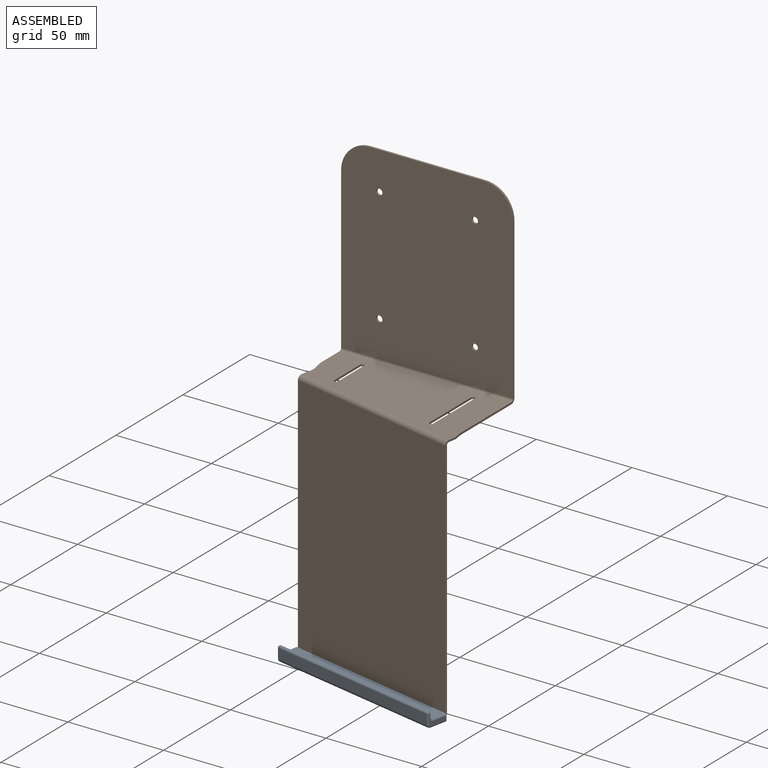
[diagram: assembled view]
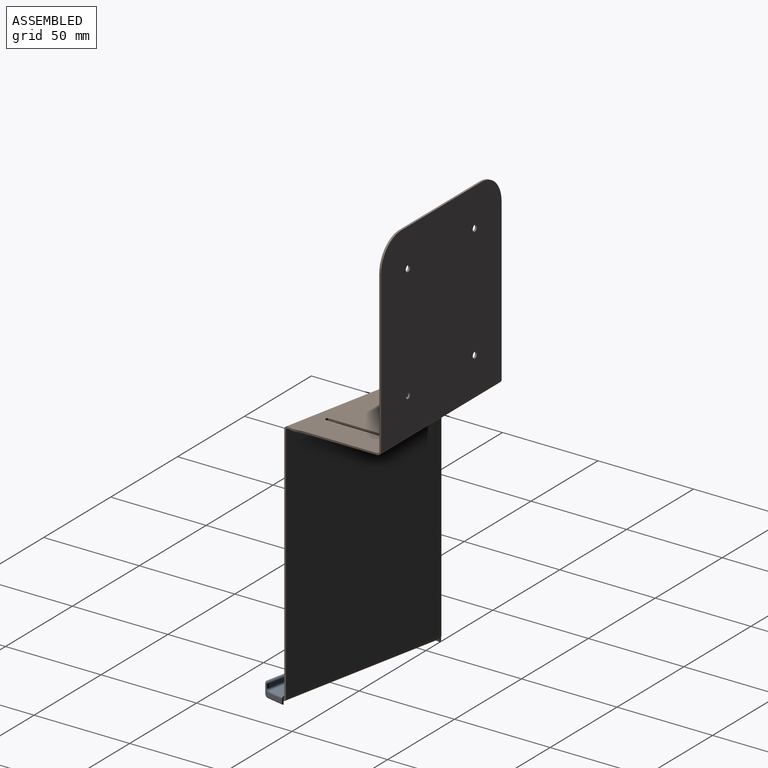
[diagram: assembled view, second angle]
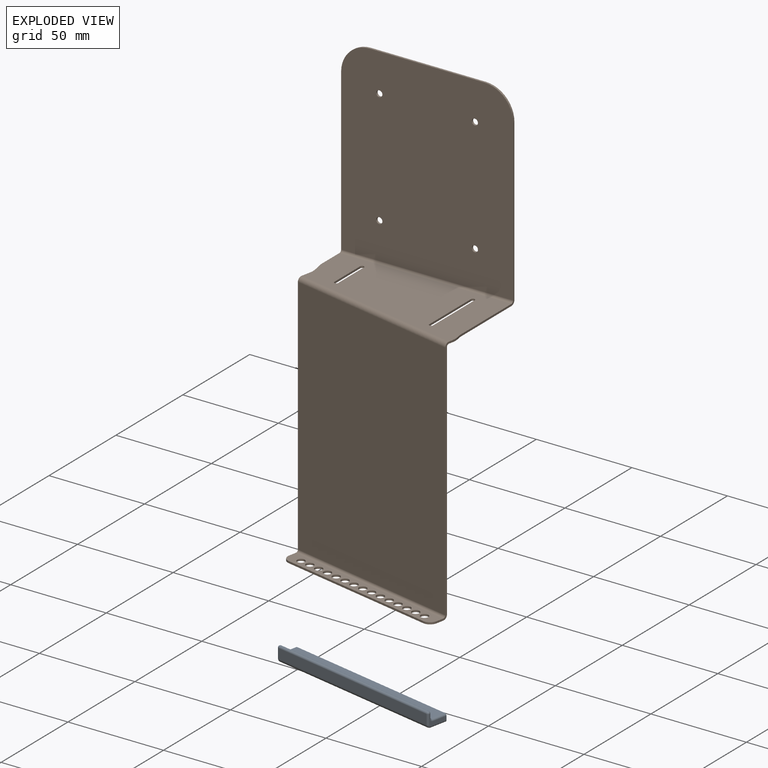
[diagram: exploded view]
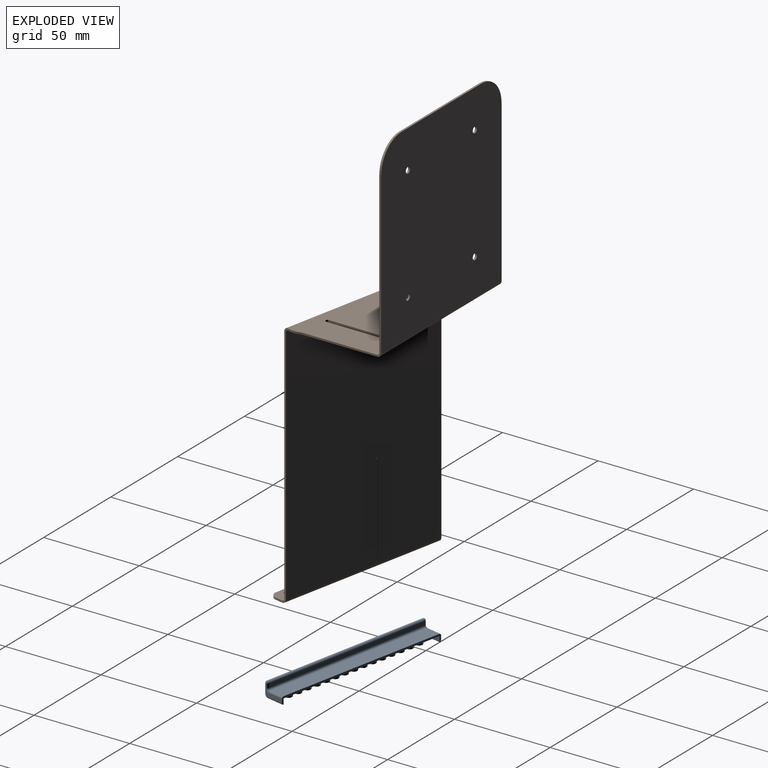
[diagram: exploded view, second angle]
ASSEMBLY  parts=2 mates=2
PART A: 84 faces, bbox 94x11.2x8.2 mm
  f0: plane 2.72x2.72mm, normal (0,0,-1), area 2.5mm2, adj f7,f11,f61
  f1: plane 94x3.97mm, normal (0,1,0), area 53.1mm2, adj f2,f9,f10,f11,f16,f17,f22,f23
  f2: plane 92x8mm, normal (0,0,1), area 736mm2, adj f1,f3,f16,f22
  f3: cylinder r=1mm len=92mm, axis (1,0,0), area 144.5mm2, adj f2,f4,f15,f21
  f4: plane 92x2mm, normal (0,1,0), area 184mm2, adj f3,f5,f13,f20
  f5: cylinder r=1mm len=92mm, axis (1,0,0), area 289mm2, adj f4,f6,f14,f19
  f6: plane 92x5mm, normal (0,-1,0), area 460mm2, adj f5,f7,f13,f20
  f7: cylinder r=2mm len=92mm, axis (1,0,0), area 269.9mm2, adj f0,f6,f8,f12,f18,f62,f63,f64
  f8: plane 2.72x2.72mm, normal (0,0,-1), area 2.5mm2, adj f7,f17,f65
  f9: plane 10x4mm, normal (-1,0,0), area 20.6mm2, adj f1,f17,f18,f20,f21,f22
  f10: plane 10x4mm, normal (1,0,0), area 20.6mm2, adj f1,f11,f12,f13,f15,f16
  f11: cylinder r=1mm len=9mm, axis (0,1,0), area 12.7mm2, adj f0,f1,f10,f12,f59,f60
  f12: torus R=1mm, axis (1,0,0), area 4mm2, adj f7,f10,f11,f13
  f13: cylinder r=1mm len=5mm, axis (0,0,-1), area 11mm2, adj f4,f6,f10,f12,f14,f15
  f14: sphere r=1mm, area 3.1mm2, adj f5,f13
  f15: torus R=2mm, axis (1,0,0), area 3.4mm2, adj f3,f10,f13,f16
  f16: cylinder r=1mm len=8mm, axis (0,-1,0), area 12.6mm2, adj f1,f2,f10,f15
  f17: cylinder r=1mm len=9mm, axis (0,-1,0), area 12.7mm2, adj f1,f8,f9,f18,f66,f67
  f18: torus R=1mm, axis (1,0,0), area 4mm2, adj f7,f9,f17,f20
  f19: sphere r=1mm, area 3.1mm2, adj f5,f20
  f20: cylinder r=1mm len=5mm, axis (0,0,1), area 11mm2, adj f4,f6,f9,f18,f19,f21
  f21: torus R=2mm, axis (1,0,0), area 3.4mm2, adj f3,f9,f20,f22
  f22: cylinder r=1mm len=8mm, axis (0,1,0), area 12.6mm2, adj f1,f2,f9,f21
  f23: plane 5x3.27mm, normal (-1,0,0), area 11.6mm2, adj f1,f24,f43,f59,f83
  f24: cylinder r=4mm len=4mm, axis (0,0,-1), area 14.4mm2, adj f23,f25,f43,f60,f61,f62
  f25: plane 84x2.29mm, normal (0,1,0), area 192.3mm2, adj f24,f26,f43,f63
  f26: cylinder r=4mm len=4mm, axis (0,0,-1), area 14.4mm2, adj f25,f27,f43,f64,f65,f66
  f27: plane 5x3.27mm, normal (1,0,0), area 11.6mm2, adj f1,f26,f43,f67,f83
  f28: cylinder r=1.95mm len=3.9mm, axis (0,0,-1), area 28.2mm2, adj f43,f82
  f29: cylinder r=1.95mm len=3.9mm, axis (0,0,-1), area 28.2mm2, adj f43,f81
  f30: cylinder r=1.95mm len=3.9mm, axis (0,0,-1), area 28.2mm2, adj f43,f80
  f31: cylinder r=1.95mm len=3.9mm, axis (0,0,-1), area 28.2mm2, adj f43,f79
  f32: cylinder r=1.95mm len=3.9mm, axis (0,0,-1), area 28.2mm2, adj f43,f78
  f33: cylinder r=1.95mm len=3.9mm, axis (0,0,-1), area 28.2mm2, adj f43,f77
  f34: cylinder r=1.95mm len=3.9mm, axis (0,0,-1), area 28.2mm2, adj f43,f76
  f35: cylinder r=1.95mm len=3.9mm, axis (0,0,-1), area 28.2mm2, adj f43,f75
  f36: cylinder r=1.95mm len=3.9mm, axis (0,0,-1), area 28.2mm2, adj f43,f74
  f37: cylinder r=1.95mm len=3.9mm, axis (0,0,-1), area 28.2mm2, adj f43,f73
  f38: cylinder r=1.95mm len=3.9mm, axis (0,0,-1), area 28.2mm2, adj f43,f72
  f39: cylinder r=1.95mm len=3.9mm, axis (0,0,-1), area 28.2mm2, adj f43,f71
  f40: cylinder r=1.95mm len=3.9mm, axis (0,0,-1), area 28.2mm2, adj f43,f70
  f41: cylinder r=1.95mm len=3.9mm, axis (0,0,-1), area 28.2mm2, adj f43,f69
  f42: cylinder r=1.95mm len=3.9mm, axis (0,0,-1), area 28.2mm2, adj f43,f68
  f43: plane 92x8mm, normal (0,0,-1), area 549.9mm2, adj f23,f24,f25,f26,f27,f28,f29,f30
  f44: plane 3.5x3.5mm, normal (0,0,-1), area 9.6mm2, adj f69
  f45: plane 3.5x3.5mm, normal (0,0,-1), area 9.6mm2, adj f70
  f46: plane 3.5x3.5mm, normal (0,0,-1), area 9.6mm2, adj f71
  f47: plane 3.5x3.5mm, normal (0,0,-1), area 9.6mm2, adj f72
  f48: plane 3.5x3.5mm, normal (0,0,-1), area 9.6mm2, adj f73
  f49: plane 3.5x3.5mm, normal (0,0,-1), area 9.6mm2, adj f74
  f50: plane 3.5x3.5mm, normal (0,0,-1), area 9.6mm2, adj f75
  f51: plane 3.5x3.5mm, normal (0,0,-1), area 9.6mm2, adj f76
  f52: plane 3.5x3.5mm, normal (0,0,-1), area 9.6mm2, adj f77
  f53: plane 3.5x3.5mm, normal (0,0,-1), area 9.6mm2, adj f78
  f54: plane 3.5x3.5mm, normal (0,0,-1), area 9.6mm2, adj f79
  f55: plane 3.5x3.5mm, normal (0,0,-1), area 9.6mm2, adj f80
  f56: plane 3.5x3.5mm, normal (0,0,-1), area 9.6mm2, adj f81
  f57: plane 3.5x3.5mm, normal (0,0,-1), area 9.6mm2, adj f82
  f58: plane 3.5x3.5mm, normal (0,0,-1), area 9.6mm2, adj f68
  f59: cylinder r=0.2mm len=5mm, axis (0,1,0), area 1.8mm2, adj f1,f11,f23,f60
  f60: bspline ~1.98x0.63mm, area 0.4mm2, adj f11,f24,f59,f61
  f61: torus R=4.2mm, axis (0,0,-1), area 1.2mm2, adj f0,f24,f60,f62
  f62: bspline ~2.04x0.51mm, area 0.4mm2, adj f7,f24,f61,f63
  f63: cylinder r=0.2mm len=84mm, axis (1,0,0), area 28.3mm2, adj f7,f25,f62,f64
  f64: bspline ~2.04x0.51mm, area 0.4mm2, adj f7,f26,f63,f65
  f65: torus R=4.2mm, axis (0,0,-1), area 1.2mm2, adj f8,f26,f64,f66
  f66: bspline ~1.98x0.63mm, area 0.4mm2, adj f17,f26,f65,f67
  f67: cylinder r=0.2mm len=5mm, axis (0,-1,0), area 1.8mm2, adj f1,f17,f27,f66
  f68: torus R=1.75mm, axis (0,0,-1), area 3.7mm2, adj f42,f58
  f69: torus R=1.75mm, axis (0,0,-1), area 3.7mm2, adj f41,f44
  f70: torus R=1.75mm, axis (0,0,-1), area 3.7mm2, adj f40,f45
  f71: torus R=1.75mm, axis (0,0,-1), area 3.7mm2, adj f39,f46
  f72: torus R=1.75mm, axis (0,0,-1), area 3.7mm2, adj f38,f47
  f73: torus R=1.75mm, axis (0,0,-1), area 3.7mm2, adj f37,f48
  f74: torus R=1.75mm, axis (0,0,-1), area 3.7mm2, adj f36,f49
  f75: torus R=1.75mm, axis (0,0,-1), area 3.7mm2, adj f35,f50
  f76: torus R=1.75mm, axis (0,0,-1), area 3.7mm2, adj f34,f51
  f77: torus R=1.75mm, axis (0,0,-1), area 3.7mm2, adj f33,f52
  f78: torus R=1.75mm, axis (0,0,-1), area 3.7mm2, adj f32,f53
  f79: torus R=1.75mm, axis (0,0,-1), area 3.7mm2, adj f31,f54
  f80: torus R=1.75mm, axis (0,0,-1), area 3.7mm2, adj f30,f55
  f81: torus R=1.75mm, axis (0,0,-1), area 3.7mm2, adj f29,f56
  f82: torus R=1.75mm, axis (0,0,-1), area 3.7mm2, adj f28,f57
  f83: cylinder r=1mm len=92mm, axis (-1,0,0), area 144.5mm2, adj f1,f23,f27,f43
PART B: 57 faces, bbox 92.2x59.3x231.1 mm
  f0: plane 86.2x15.5mm, normal (-1,0,0), area 100mm2, adj f1,f18,f19,f20,f21,f22,f23,f29
  f1: cylinder r=10mm len=2mm, axis (0,0,-1), area 2mm2, adj f0,f2,f18,f19
  f2: plane 4.01x1mm, normal (-0.98,-0.2,0), area 4.1mm2, adj f1,f3,f18,f19
  f3: cylinder r=10mm len=4mm, axis (0,0,-1), area 4mm2, adj f2,f4,f18,f19
  f4: plane 130.9x12.25mm, normal (-0.98,0.2,0), area 140.9mm2, adj f3,f18,f19,f31,f32,f33,f34,f35
  f5: plane 130.9x9.25mm, normal (0.98,-0.2,0), area 137.9mm2, adj f6,f18,f19,f31,f32,f33,f34,f35
  f6: cylinder r=10mm len=4mm, axis (0,0,-1), area 4mm2, adj f5,f7,f18,f19
  f7: plane 1.01x1mm, normal (0.98,0.2,0), area 1mm2, adj f6,f8,f18,f19
  f8: cylinder r=10mm len=2mm, axis (0,0,-1), area 2mm2, adj f7,f9,f18,f19
  f9: plane 86.2x39.88mm, normal (1,0,0), area 124.3mm2, adj f8,f18,f19,f20,f21,f22,f23,f30
  f10: cylinder r=1mm len=2mm, axis (0,0,-1), area 3.1mm2, adj f11,f16,f18,f19
  f11: plane 19.27x1mm, normal (-1,0,0), area 19.3mm2, adj f10,f12,f18,f19
  f12: cylinder r=1mm len=2mm, axis (0,0,-1), area 3.1mm2, adj f11,f16,f18,f19
  f13: cylinder r=1mm len=2mm, axis (0,0,-1), area 3.1mm2, adj f14,f17,f18,f19
  f14: plane 31.12x1mm, normal (-1,0,0), area 31.1mm2, adj f13,f15,f18,f19
  f15: cylinder r=1mm len=2mm, axis (0,0,-1), area 3.1mm2, adj f14,f17,f18,f19
  f16: plane 19.27x1mm, normal (1,0,0), area 19.3mm2, adj f10,f12,f18,f19
  f17: plane 31.12x1mm, normal (1,0,0), area 31.1mm2, adj f13,f15,f18,f19
  f18: plane 90.61x46.69mm, normal (0,0,1), area 3261.2mm2, adj f0,f1,f2,f3,f4,f5,f6,f7
  f19: plane 90.61x46.69mm, normal (0,0,-1), area 3261.2mm2, adj f0,f1,f2,f3,f4,f5,f6,f7
  f20: cylinder r=1.2mm len=90mm, axis (1,0,0), area 169.6mm2, adj f0,f9,f18,f23
  f21: cylinder r=2.2mm len=90mm, axis (1,0,0), area 311mm2, adj f0,f9,f19,f22
  f22: plane 99x90mm, normal (0,1,0), area 8781.3mm2, adj f0,f9,f21,f24,f25,f26,f27,f28
  f23: plane 99x90mm, normal (0,-1,0), area 8781.3mm2, adj f0,f9,f20,f24,f25,f26,f27,f28
  f24: plane 60x1mm, normal (0,0,1), area 60mm2, adj f22,f23,f29,f30
  f25: cylinder r=1.6mm len=3.2mm, axis (0,-1,0), area 10.1mm2, adj f22,f23
  f26: cylinder r=1.6mm len=3.2mm, axis (0,-1,0), area 10.1mm2, adj f22,f23
  f27: cylinder r=1.6mm len=3.2mm, axis (0,-1,0), area 10.1mm2, adj f22,f23
  f28: cylinder r=1.6mm len=3.2mm, axis (0,-1,0), area 10.1mm2, adj f22,f23
  f29: cylinder r=15mm len=15mm, axis (0,1,0), area 23.6mm2, adj f0,f22,f23,f24
  f30: cylinder r=15mm len=15mm, axis (0,1,0), area 23.6mm2, adj f9,f22,f23,f24
  f31: cylinder r=1.2mm len=90.24mm, axis (-0.98,0.2,0), area 173.1mm2, adj f4,f5,f19,f33
  f32: cylinder r=2.2mm len=90.44mm, axis (-0.98,0.2,0), area 317.4mm2, adj f4,f5,f18,f34
  f33: plane 126.5x90mm, normal (0.2,0.98,0), area 11620mm2, adj f4,f5,f31,f36
  f34: plane 126.5x90mm, normal (-0.2,-0.98,0), area 11620mm2, adj f4,f5,f32,f35
  f35: cylinder r=1.2mm len=90.24mm, axis (-0.98,0.2,0), area 173.1mm2, adj f4,f5,f34,f37
  f36: cylinder r=2.2mm len=90.44mm, axis (-0.98,0.2,0), area 317.4mm2, adj f4,f5,f33,f38
  f37: plane 90.88x25.5mm, normal (0,0,1), area 539.5mm2, adj f4,f5,f35,f39,f40,f41,f42,f43
  f38: plane 90.88x25.5mm, normal (0,0,-1), area 539.5mm2, adj f4,f5,f36,f39,f40,f41,f42,f43
  f39: plane 82.16x16.78mm, normal (-0.2,-0.98,0), area 83.9mm2, adj f37,f38,f55,f56
  f40: cylinder r=2mm len=4mm, axis (0,0,1), area 12.6mm2, adj f37,f38
  f41: cylinder r=2mm len=4mm, axis (0,0,1), area 12.6mm2, adj f37,f38
  f42: cylinder r=2mm len=4mm, axis (0,0,1), area 12.6mm2, adj f37,f38
  f43: cylinder r=2mm len=4mm, axis (0,0,1), area 12.6mm2, adj f37,f38
  f44: cylinder r=2mm len=4mm, axis (0,0,1), area 12.6mm2, adj f37,f38
  f45: cylinder r=2mm len=4mm, axis (0,0,1), area 12.6mm2, adj f37,f38
  f46: cylinder r=2mm len=4mm, axis (0,0,1), area 12.6mm2, adj f37,f38
  f47: cylinder r=2mm len=4mm, axis (0,0,1), area 12.6mm2, adj f37,f38
  f48: cylinder r=2mm len=4mm, axis (0,0,1), area 12.6mm2, adj f37,f38
  f49: cylinder r=2mm len=4mm, axis (0,0,1), area 12.6mm2, adj f37,f38
  f50: cylinder r=2mm len=4mm, axis (0,0,1), area 12.6mm2, adj f37,f38
  f51: cylinder r=2mm len=4mm, axis (0,0,1), area 12.6mm2, adj f37,f38
  f52: cylinder r=2mm len=4mm, axis (0,0,1), area 12.6mm2, adj f37,f38
  f53: cylinder r=2mm len=4mm, axis (0,0,1), area 12.6mm2, adj f37,f38
  f54: cylinder r=2mm len=4mm, axis (0,0,1), area 12.6mm2, adj f37,f38
  f55: cylinder r=4mm len=4.72mm, axis (0,0,1), area 6.3mm2, adj f4,f37,f38,f39
  f56: cylinder r=4mm len=4.72mm, axis (0,0,-1), area 6.3mm2, adj f5,f37,f38,f39
PLACE A rot(axis=(0,0,-1),11.5deg) t=(38.71,-59.31,-141.2)mm
PLACE B t=(11.83,-14.52,-8.42)mm
MATE cylindrical B.f40 <-> A.f35  axis (0,0,1) through (28.47,-66.97,-137.32)mm
MATE cylindrical A.f28 <-> B.f54  axis (0,0,-1) through (-46.98,-51.56,-137.24)mm
